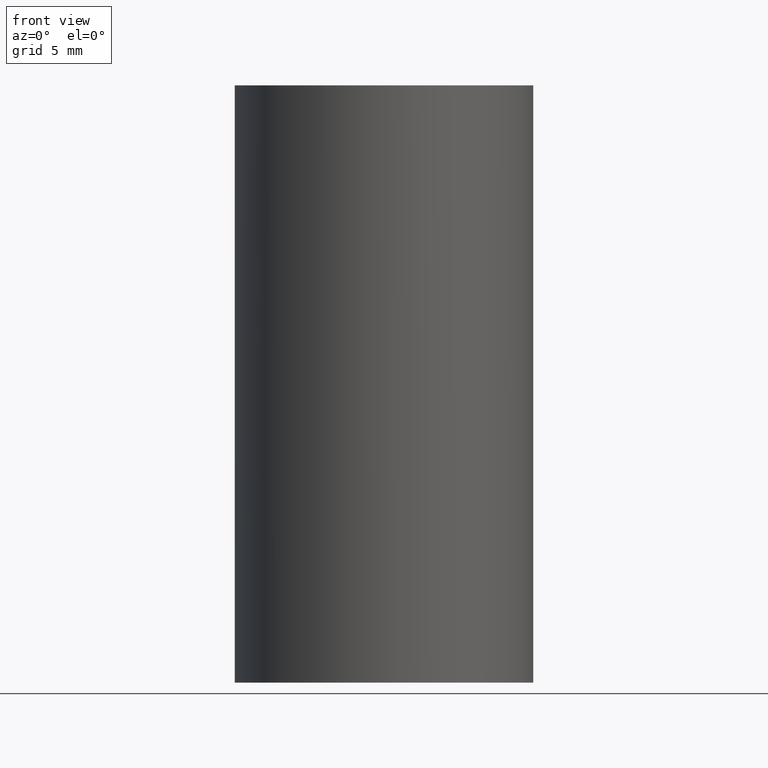
[diagram: clean part render]
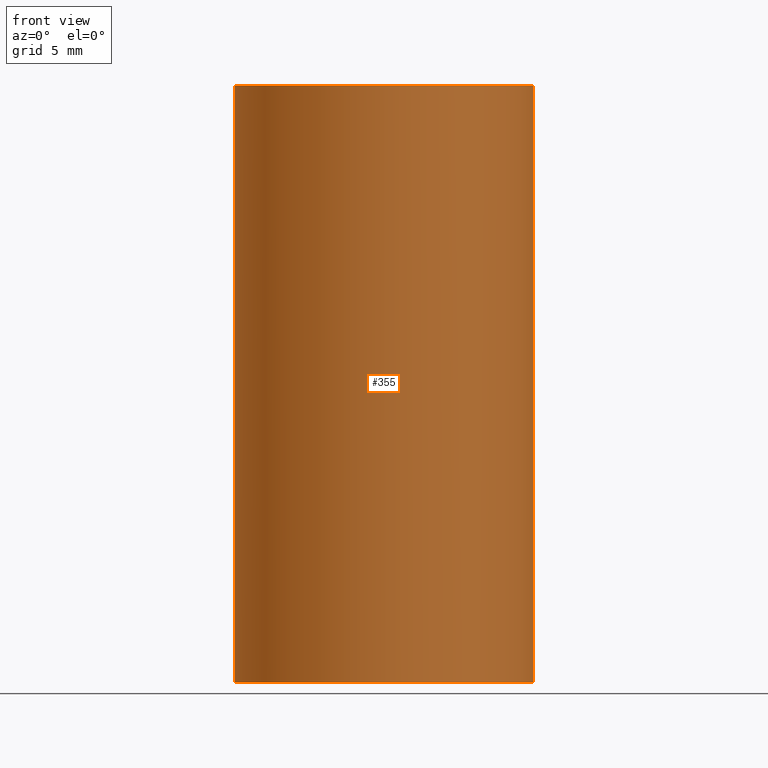
[diagram: same view with one face highlighted and labeled with its STEP entity id]
A machine part, front view. The second image highlights one B-rep face of the part: STEP entity #355.
In plain terms, the highlighted cylindrical surface (partial cylindrical patch) has radius 7.9375 mm, axis along (0, 0, 1).
Its self-contained STEP definition (entity closure, byte-faithful):
#4 = CARTESIAN_POINT ( 'NONE',  ( 0.3125000000000000000, 0.0000000000000000000, 0.0000000000000000000 ) ) ;
#47 = ORIENTED_EDGE ( 'NONE', *, *, #69, .F. ) ;
#60 = VERTEX_POINT ( 'NONE', #4 ) ;
#62 = DIRECTION ( 'NONE',  ( 1.000000000000000000, 0.0000000000000000000, 0.0000000000000000000 ) ) ;
#69 = EDGE_CURVE ( 'NONE', #370, #60, #112, .T. ) ;
#70 = LINE ( 'NONE', #353, #140 ) ;
#86 = AXIS2_PLACEMENT_3D ( 'NONE', #254, #308, #62 ) ;
#89 = FACE_OUTER_BOUND ( 'NONE', #151, .T. ) ;
#96 = CARTESIAN_POINT ( 'NONE',  ( 0.0000000000000000000, 0.0000000000000000000, -1.250000000000000000 ) ) ;
#99 = AXIS2_PLACEMENT_3D ( 'NONE', #96, #388, #171 ) ;
#112 = CIRCLE ( 'NONE', #86, 0.3125000000000000000 ) ;
#114 = CARTESIAN_POINT ( 'NONE',  ( -0.3125000000000000000, 3.827021247335478900E-017, -1.250000000000000000 ) ) ;
#126 = CARTESIAN_POINT ( 'NONE',  ( 0.0000000000000000000, 0.0000000000000000000, -1.250000000000000000 ) ) ;
#130 = ORIENTED_EDGE ( 'NONE', *, *, #362, .F. ) ;
#132 = LINE ( 'NONE', #139, #363 ) ;
#138 = EDGE_CURVE ( 'NONE', #337, #336, #400, .T. ) ;
#139 = CARTESIAN_POINT ( 'NONE',  ( 0.3125000000000000000, 0.0000000000000000000, -1.250000000000000000 ) ) ;
#140 = VECTOR ( 'NONE', #298, 39.37007874015748100 ) ;
#150 = ORIENTED_EDGE ( 'NONE', *, *, #138, .T. ) ;
#151 = EDGE_LOOP ( 'NONE', ( #130, #150, #271, #47 ) ) ;
#163 = DIRECTION ( 'NONE',  ( 0.0000000000000000000, 0.0000000000000000000, 1.000000000000000000 ) ) ;
#171 = DIRECTION ( 'NONE',  ( 1.000000000000000000, 0.0000000000000000000, 0.0000000000000000000 ) ) ;
#192 = CARTESIAN_POINT ( 'NONE',  ( -0.3125000000000000000, 3.827021247335478900E-017, 0.0000000000000000000 ) ) ;
#195 = AXIS2_PLACEMENT_3D ( 'NONE', #126, #163, #395 ) ;
#214 = CYLINDRICAL_SURFACE ( 'NONE', #99, 0.3125000000000000000 ) ;
#254 = CARTESIAN_POINT ( 'NONE',  ( 0.0000000000000000000, 0.0000000000000000000, 0.0000000000000000000 ) ) ;
#258 = CARTESIAN_POINT ( 'NONE',  ( 0.3125000000000000000, 0.0000000000000000000, -1.250000000000000000 ) ) ;
#271 = ORIENTED_EDGE ( 'NONE', *, *, #323, .T. ) ;
#298 = DIRECTION ( 'NONE',  ( 0.0000000000000000000, 0.0000000000000000000, 1.000000000000000000 ) ) ;
#308 = DIRECTION ( 'NONE',  ( 0.0000000000000000000, 0.0000000000000000000, 1.000000000000000000 ) ) ;
#323 = EDGE_CURVE ( 'NONE', #336, #60, #132, .T. ) ;
#336 = VERTEX_POINT ( 'NONE', #258 ) ;
#337 = VERTEX_POINT ( 'NONE', #114 ) ;
#353 = CARTESIAN_POINT ( 'NONE',  ( -0.3125000000000000000, 3.827021247335478900E-017, -1.250000000000000000 ) ) ;
#355 = ADVANCED_FACE ( 'NONE', ( #89 ), #214, .T. ) ;
#362 = EDGE_CURVE ( 'NONE', #337, #370, #70, .T. ) ;
#363 = VECTOR ( 'NONE', #379, 39.37007874015748100 ) ;
#370 = VERTEX_POINT ( 'NONE', #192 ) ;
#379 = DIRECTION ( 'NONE',  ( 0.0000000000000000000, 0.0000000000000000000, 1.000000000000000000 ) ) ;
#388 = DIRECTION ( 'NONE',  ( 0.0000000000000000000, 0.0000000000000000000, 1.000000000000000000 ) ) ;
#395 = DIRECTION ( 'NONE',  ( 1.000000000000000000, 0.0000000000000000000, 0.0000000000000000000 ) ) ;
#400 = CIRCLE ( 'NONE', #195, 0.3125000000000000000 ) ;